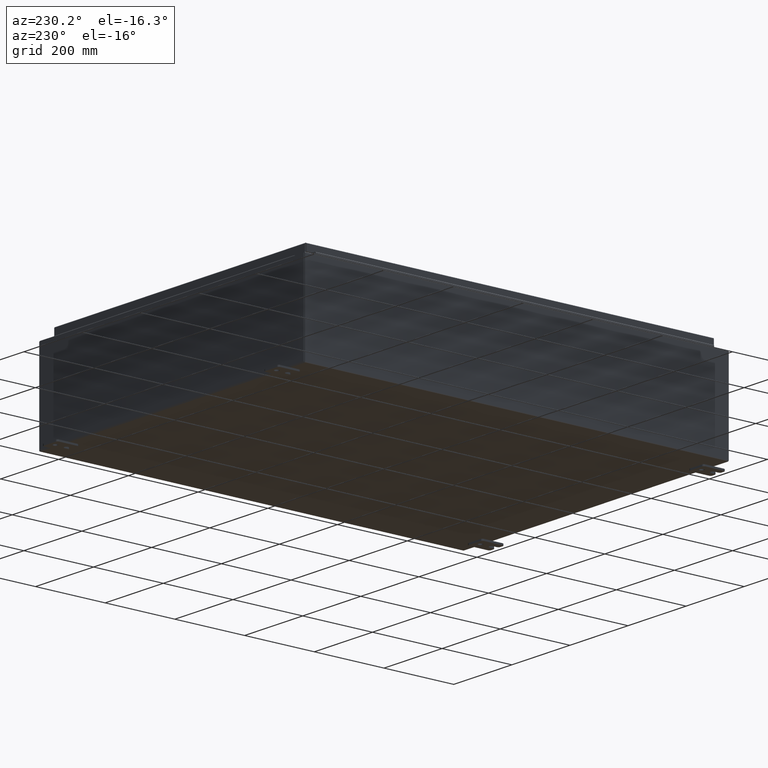
[diagram: clean part render]
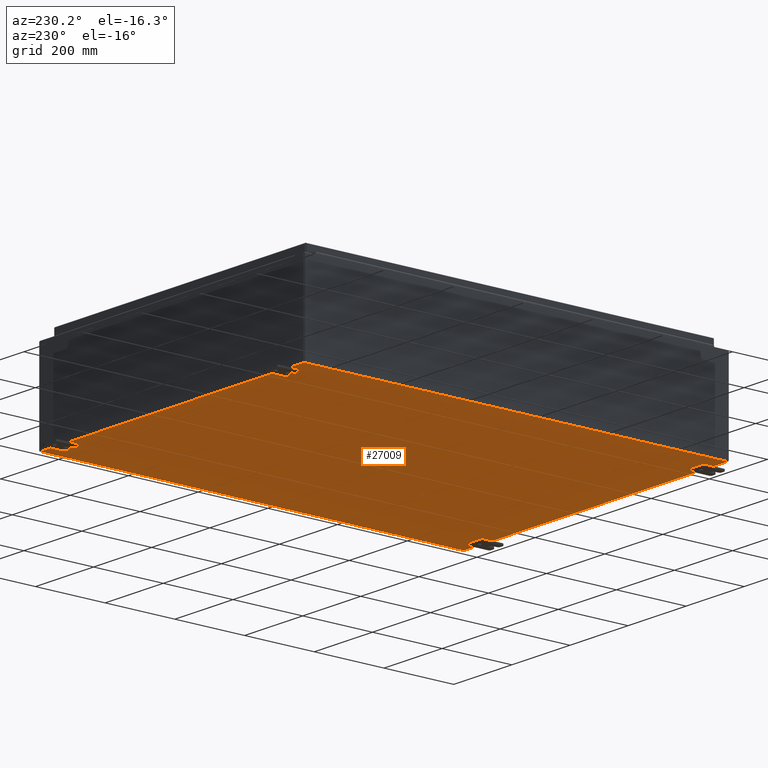
[diagram: same view with one face highlighted and labeled with its STEP entity id]
A machine part, auxiliary view. The second image highlights one B-rep face of the part: STEP entity #27009.
In plain terms, the highlighted planar face has unit normal (0, 0, -1).
Its self-contained STEP definition (entity closure, byte-faithful):
#2871 = VERTEX_POINT ( 'NONE', #27047 ) ;
#6005 = DIRECTION ( 'NONE',  ( -0.0000000000000000000, 1.000000000000000000, -0.0000000000000000000 ) ) ;
#14573 = EDGE_LOOP ( 'NONE', ( #112328, #92358, #15315, #82667 ) ) ;
#15315 = ORIENTED_EDGE ( 'NONE', *, *, #78612, .F. ) ;
#17184 = EDGE_CURVE ( 'NONE', #74262, #94061, #109450, .T. ) ;
#20052 = DIRECTION ( 'NONE',  ( 0.0000000000000000000, 0.0000000000000000000, -1.000000000000000000 ) ) ;
#25871 = CARTESIAN_POINT ( 'NONE',  ( -18.00000000000000400, 23.92530000000000000, -0.07470000000000000300 ) ) ;
#27009 = ADVANCED_FACE ( 'NONE', ( #77139 ), #57717, .T. ) ;
#27047 = CARTESIAN_POINT ( 'NONE',  ( 17.91229999999999500, 23.92529999999998600, -0.07469999999999688000 ) ) ;
#27571 = EDGE_CURVE ( 'NONE', #74262, #68478, #86673, .T. ) ;
#27694 = VECTOR ( 'NONE', #6005, 39.37007874015748100 ) ;
#31609 = CARTESIAN_POINT ( 'NONE',  ( 17.91229999999999500, -23.92530000000000000, -0.07470000000000000300 ) ) ;
#34707 = DIRECTION ( 'NONE',  ( 1.000000000000000000, 1.214154663850783700E-016, 0.0000000000000000000 ) ) ;
#46191 = LINE ( 'NONE', #25871, #127889 ) ;
#47388 = CARTESIAN_POINT ( 'NONE',  ( 0.0000000000000000000, 0.0000000000000000000, -0.07470000000000000300 ) ) ;
#53683 = CARTESIAN_POINT ( 'NONE',  ( -17.91230000000000500, -23.92529999999998600, -0.07469999999999994700 ) ) ;
#57717 = PLANE ( 'NONE',  #122162 ) ;
#59470 = VECTOR ( 'NONE', #34707, 39.37007874015748100 ) ;
#67056 = CARTESIAN_POINT ( 'NONE',  ( -17.91230000000000500, -23.92529999999998900, -0.07469999999999994700 ) ) ;
#68015 = DIRECTION ( 'NONE',  ( -1.000000000000000000, 0.0000000000000000000, -0.0000000000000000000 ) ) ;
#68478 = VERTEX_POINT ( 'NONE', #31609 ) ;
#73291 = CARTESIAN_POINT ( 'NONE',  ( 17.91229999999999500, 23.92529999999998900, -0.07469999999999688000 ) ) ;
#74262 = VERTEX_POINT ( 'NONE', #53683 ) ;
#77139 = FACE_OUTER_BOUND ( 'NONE', #14573, .T. ) ;
#78612 = EDGE_CURVE ( 'NONE', #2871, #94061, #46191, .T. ) ;
#80194 = LINE ( 'NONE', #73291, #104211 ) ;
#82667 = ORIENTED_EDGE ( 'NONE', *, *, #119815, .T. ) ;
#85793 = CARTESIAN_POINT ( 'NONE',  ( -18.00000000000000400, -23.92530000000000400, -0.07470000000000000300 ) ) ;
#86673 = LINE ( 'NONE', #85793, #59470 ) ;
#92358 = ORIENTED_EDGE ( 'NONE', *, *, #17184, .T. ) ;
#94061 = VERTEX_POINT ( 'NONE', #104847 ) ;
#104122 = DIRECTION ( 'NONE',  ( -0.0000000000000000000, -1.000000000000000000, -8.208677865577646300E-017 ) ) ;
#104211 = VECTOR ( 'NONE', #104122, 39.37007874015748100 ) ;
#104847 = CARTESIAN_POINT ( 'NONE',  ( -17.91230000000000500, 23.92529999999998900, -0.07470000000000000300 ) ) ;
#109450 = LINE ( 'NONE', #67056, #27694 ) ;
#112328 = ORIENTED_EDGE ( 'NONE', *, *, #27571, .F. ) ;
#119815 = EDGE_CURVE ( 'NONE', #2871, #68478, #80194, .T. ) ;
#122162 = AXIS2_PLACEMENT_3D ( 'NONE', #47388, #20052, #68015 ) ;
#127889 = VECTOR ( 'NONE', #128027, 39.37007874015748100 ) ;
#128027 = DIRECTION ( 'NONE',  ( -1.000000000000000000, -0.0000000000000000000, -0.0000000000000000000 ) ) ;